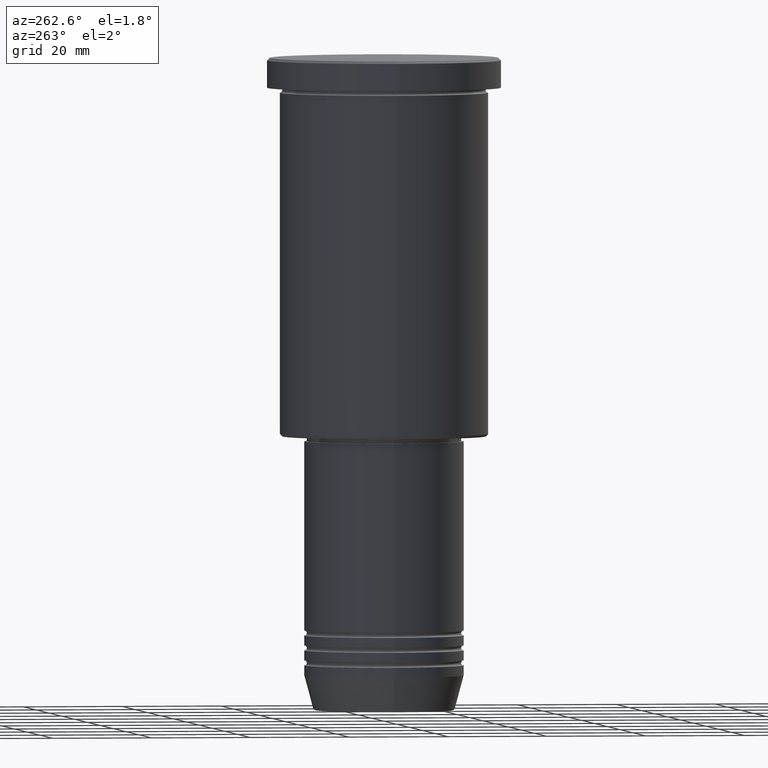
[diagram: clean part render]
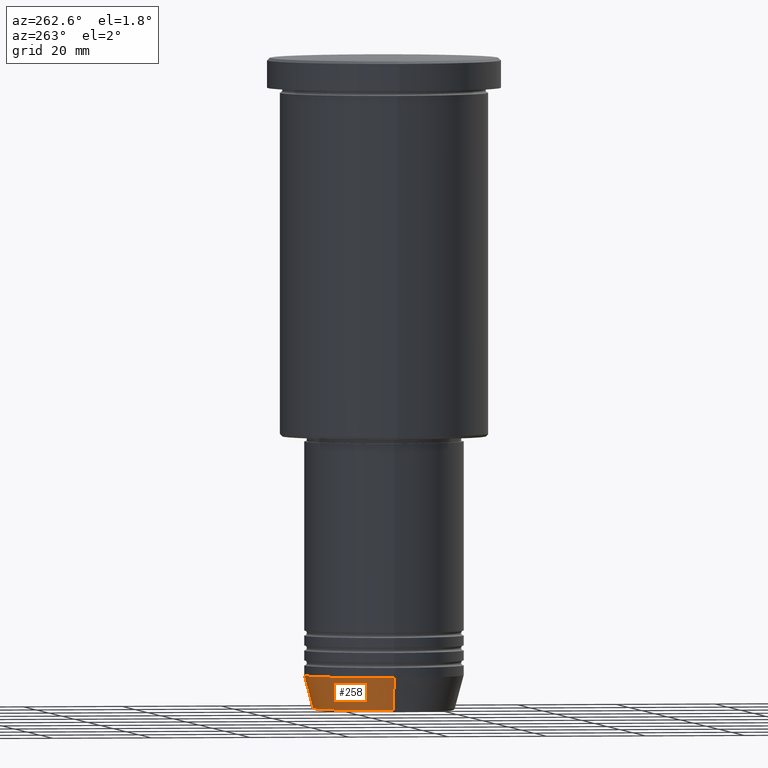
[diagram: same view with one face highlighted and labeled with its STEP entity id]
A machine part, auxiliary view. The second image highlights one B-rep face of the part: STEP entity #258.
In plain terms, the highlighted conical surface has half-angle 15 deg.
Its self-contained STEP definition (entity closure, byte-faithful):
#13 = VERTEX_POINT ( 'NONE', #522 ) ;
#27 = AXIS2_PLACEMENT_3D ( 'NONE', #827, #476, #727 ) ;
#46 = LINE ( 'NONE', #228, #612 ) ;
#74 = CARTESIAN_POINT ( 'NONE',  ( 0.000000000000000000, 0.000000000000000000, -124.0000000000000000 ) ) ;
#116 = EDGE_LOOP ( 'NONE', ( #199, #947, #368, #244 ) ) ;
#146 = VERTEX_POINT ( 'NONE', #262 ) ;
#199 = ORIENTED_EDGE ( 'NONE', *, *, #982, .T. ) ;
#228 = CARTESIAN_POINT ( 'NONE',  ( -16.00000000000000000, 1.959434878635765131E-15, -124.0000000000000000 ) ) ;
#244 = ORIENTED_EDGE ( 'NONE', *, *, #587, .F. ) ;
#258 = ADVANCED_FACE ( 'NONE', ( #1089 ), #647, .T. ) ;
#262 = CARTESIAN_POINT ( 'NONE',  ( -16.00000000000000000, 1.959434878635765131E-15, -124.0000000000000000 ) ) ;
#279 = DIRECTION ( 'NONE',  ( 1.000000000000000000, 0.000000000000000000, 0.000000000000000000 ) ) ;
#302 = CARTESIAN_POINT ( 'NONE',  ( -14.22365507213718949, 1.850665122131323731E-15, -130.6294095225512706 ) ) ;
#343 = AXIS2_PLACEMENT_3D ( 'NONE', #74, #429, #279 ) ;
#368 = ORIENTED_EDGE ( 'NONE', *, *, #478, .F. ) ;
#381 = LINE ( 'NONE', #741, #918 ) ;
#429 = DIRECTION ( 'NONE',  ( -0.000000000000000000, -0.000000000000000000, 1.000000000000000000 ) ) ;
#476 = DIRECTION ( 'NONE',  ( -0.000000000000000000, -0.000000000000000000, 1.000000000000000000 ) ) ;
#478 = EDGE_CURVE ( 'NONE', #13, #146, #896, .T. ) ;
#522 = CARTESIAN_POINT ( 'NONE',  ( 16.00000000000000000, 0.000000000000000000, -124.0000000000000000 ) ) ;
#554 = CIRCLE ( 'NONE', #27, 14.22365507213718949 ) ;
#587 = EDGE_CURVE ( 'NONE', #1019, #13, #381, .T. ) ;
#612 = VECTOR ( 'NONE', #859, 1000.000000000000000 ) ;
#647 = CONICAL_SURFACE ( 'NONE', #972, 16.00000000000000000, 0.2617993877991500740 ) ;
#649 = DIRECTION ( 'NONE',  ( 0.2588190451025213501, 0.000000000000000000, 0.9659258262890680902 ) ) ;
#726 = CARTESIAN_POINT ( 'NONE',  ( 0.000000000000000000, 0.000000000000000000, -124.0000000000000000 ) ) ;
#727 = DIRECTION ( 'NONE',  ( 1.000000000000000000, 0.000000000000000000, 0.000000000000000000 ) ) ;
#741 = CARTESIAN_POINT ( 'NONE',  ( 16.00000000000000000, 0.000000000000000000, -124.0000000000000000 ) ) ;
#827 = CARTESIAN_POINT ( 'NONE',  ( 0.000000000000000000, 0.000000000000000000, -130.6294095225512706 ) ) ;
#859 = DIRECTION ( 'NONE',  ( -0.2588190451025213501, 3.169619151431772337E-17, 0.9659258262890680902 ) ) ;
#878 = VERTEX_POINT ( 'NONE', #302 ) ;
#896 = CIRCLE ( 'NONE', #343, 16.00000000000000000 ) ;
#909 = DIRECTION ( 'NONE',  ( -0.000000000000000000, -0.000000000000000000, 1.000000000000000000 ) ) ;
#918 = VECTOR ( 'NONE', #649, 1000.000000000000000 ) ;
#947 = ORIENTED_EDGE ( 'NONE', *, *, #1085, .T. ) ;
#972 = AXIS2_PLACEMENT_3D ( 'NONE', #726, #909, #1098 ) ;
#982 = EDGE_CURVE ( 'NONE', #1019, #878, #554, .T. ) ;
#1019 = VERTEX_POINT ( 'NONE', #1026 ) ;
#1026 = CARTESIAN_POINT ( 'NONE',  ( 14.22365507213718949, 0.000000000000000000, -130.6294095225512706 ) ) ;
#1085 = EDGE_CURVE ( 'NONE', #878, #146, #46, .T. ) ;
#1089 = FACE_OUTER_BOUND ( 'NONE', #116, .T. ) ;
#1098 = DIRECTION ( 'NONE',  ( 1.000000000000000000, 0.000000000000000000, 0.000000000000000000 ) ) ;